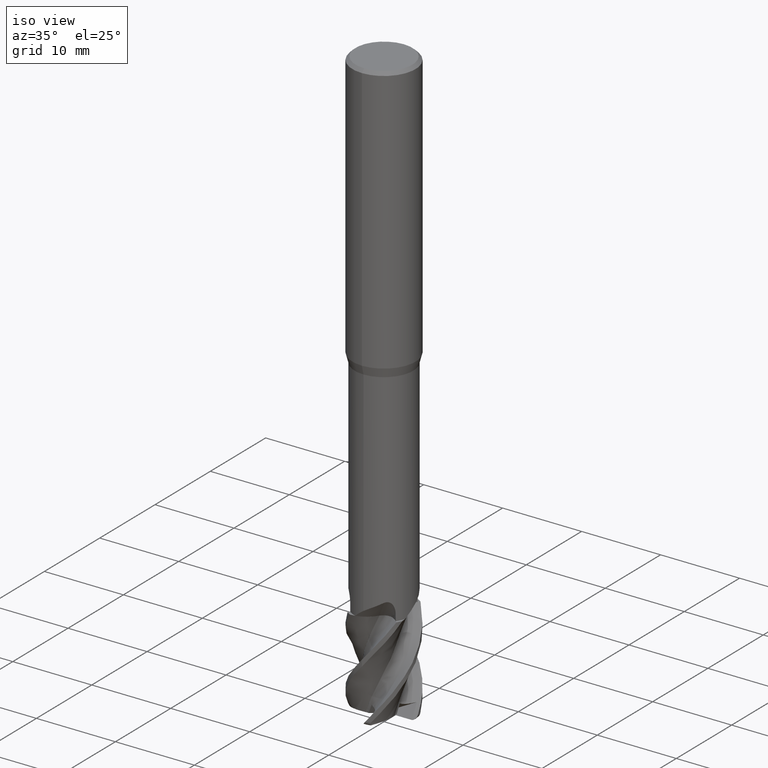
[diagram: clean part render]
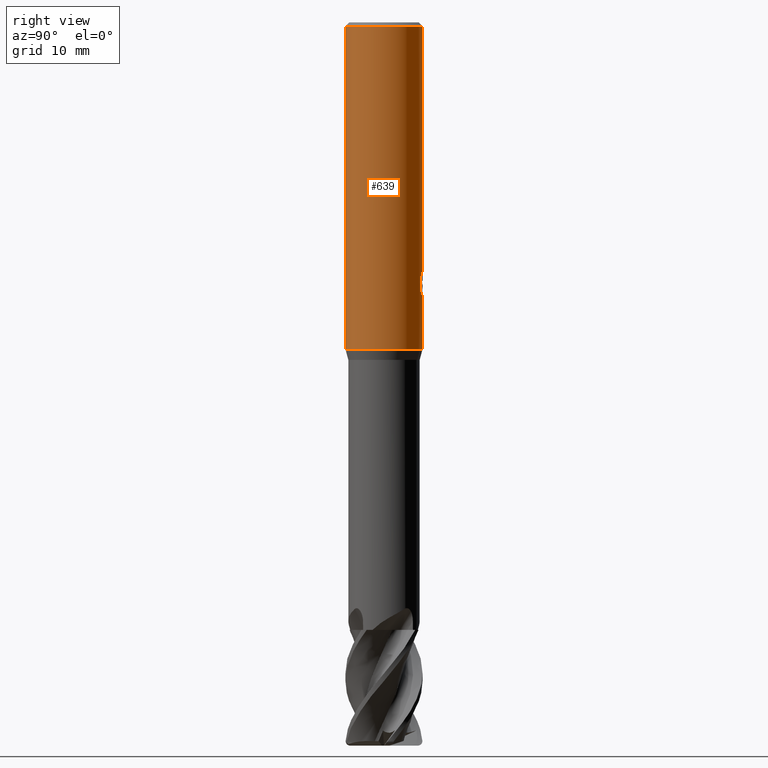
[diagram: tour spotlight — one face highlighted and labeled with its STEP entity id]
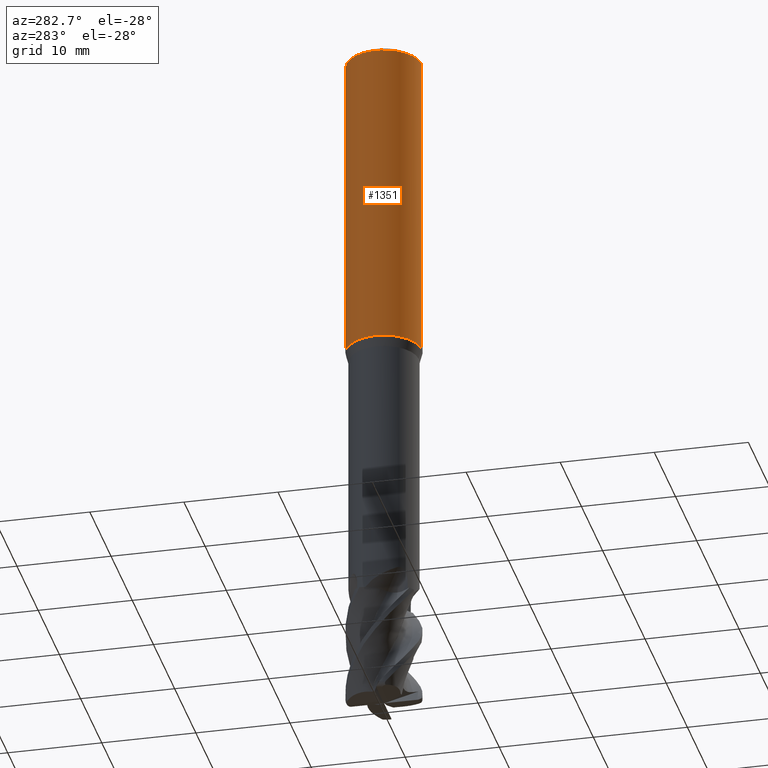
[diagram: tour spotlight — one face highlighted and labeled with its STEP entity id]
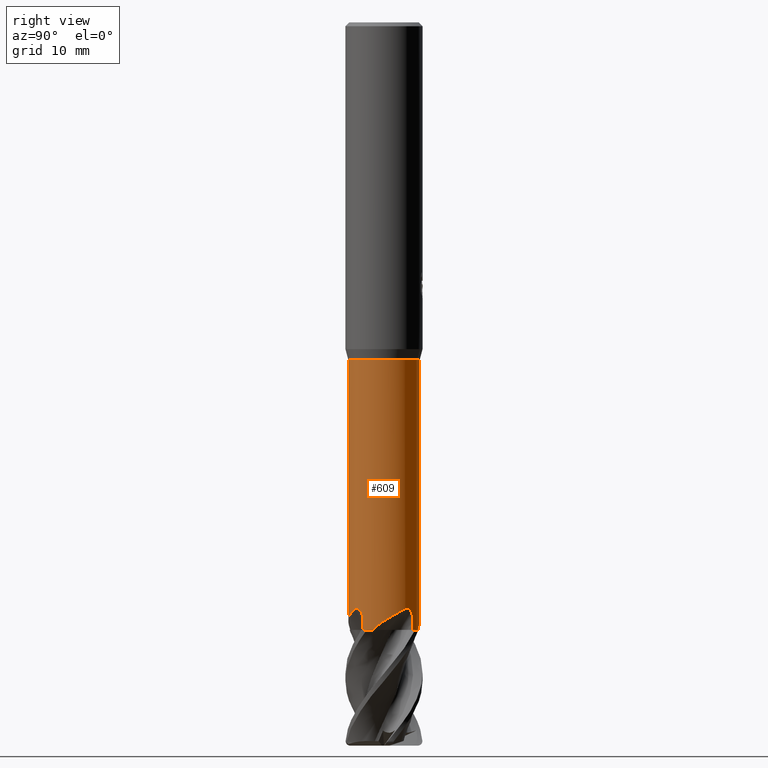
[diagram: tour spotlight — one face highlighted and labeled with its STEP entity id]
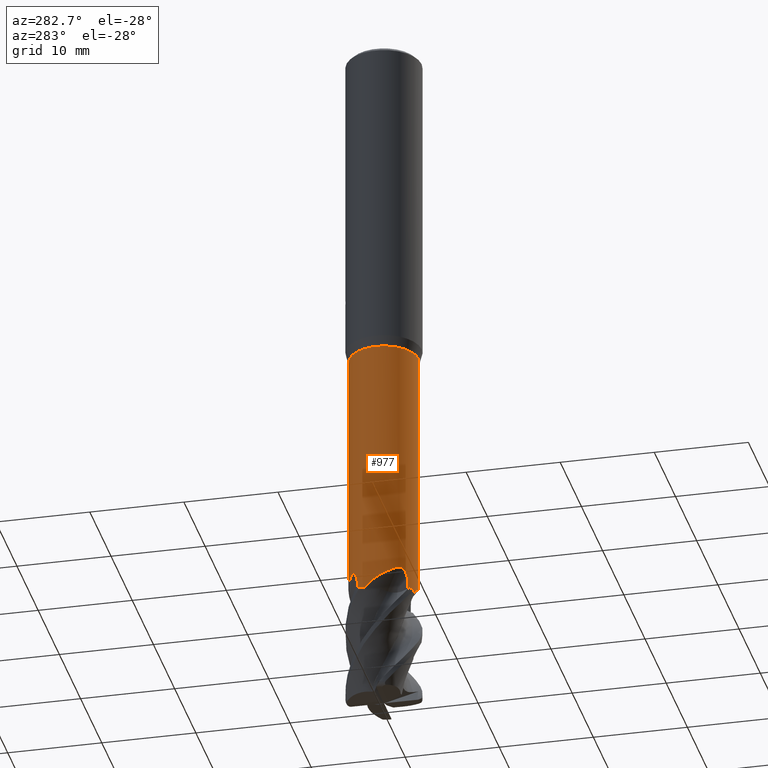
[diagram: tour spotlight — one face highlighted and labeled with its STEP entity id]
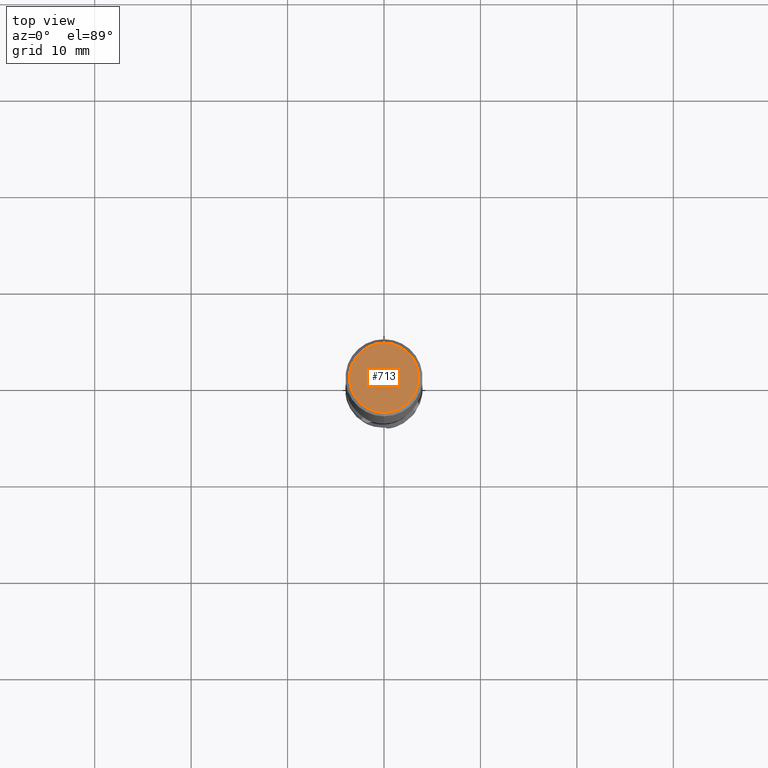
[diagram: tour spotlight — one face highlighted and labeled with its STEP entity id]
A machine part: a face-by-face anatomy tour. The part has 88 B-rep faces; the first image is the clean iso view, then the 5 largest visible faces are spotlighted one at a time (largest first), each with its STEP entity span.

Face 1 — right view, entity #639. In plain terms, the highlighted cylindrical surface (partial cylindrical patch) has radius 4 mm, axis along (-0, -0, 1).
Definition (entity closure, byte-faithful):
#521=VERTEX_POINT('',#1509);
#531=VERTEX_POINT('',#1521);
#577=EDGE_CURVE('',#531,#629,#1567,.T.);
#629=VERTEX_POINT('',#1624);
#639=ADVANCED_FACE('',(#1635,#1636),#1637,.T.);
#649=VERTEX_POINT('',#1647);
#655=EDGE_CURVE('',#521,#945,#1653,.T.);
#707=EDGE_CURVE('',#779,#531,#1713,.T.);
#723=EDGE_CURVE('',#649,#1391,#1730,.T.);
#755=VERTEX_POINT('',#1764);
#779=VERTEX_POINT('',#1789);
#789=EDGE_CURVE('',#811,#905,#1799,.T.);
#799=EDGE_CURVE('',#1433,#1369,#1809,.T.);
#801=EDGE_CURVE('',#1391,#811,#1811,.T.);
#811=VERTEX_POINT('',#1821);
#817=EDGE_CURVE('',#1369,#779,#1827,.T.);
#895=EDGE_CURVE('',#969,#1045,#1913,.T.);
#905=VERTEX_POINT('',#1923);
#911=VERTEX_POINT('',#1931);
#945=VERTEX_POINT('',#1968);
#969=VERTEX_POINT('',#1994);
#1045=VERTEX_POINT('',#2078);
#1171=EDGE_CURVE('',#969,#521,#2213,.T.);
#1277=EDGE_CURVE('',#911,#649,#2329,.T.);
#1355=EDGE_CURVE('',#755,#911,#2422,.T.);
#1369=VERTEX_POINT('',#2436);
#1391=VERTEX_POINT('',#2461);
#1403=EDGE_CURVE('',#945,#1045,#2473,.T.);
#1433=VERTEX_POINT('',#2505);
#1463=EDGE_CURVE('',#905,#1433,#2538,.T.);
#1483=EDGE_CURVE('',#629,#755,#2562,.T.);
#1509=CARTESIAN_POINT('',(0.0,4.0,-33.88));
#1521=CARTESIAN_POINT('',(0.019999937499785,3.99995,-27.3927905605459));
#1567=LINE('',#2985,#2986);
#1624=CARTESIAN_POINT('',(0.0199999374997759,3.99995,-28.5738244903379));
#1635=FACE_OUTER_BOUND('',#3640,.T.);
#1636=FACE_BOUND('',#3641,.T.);
#1637=CYLINDRICAL_SURFACE('',#3642,4.0);
#1647=CARTESIAN_POINT('',(0.776488765473096,3.92390942773837,-28.3322783924577));
#1653=CIRCLE('',#3733,4.0);
#1713=ELLIPSE('',#4524,4.45971372817144,4.0);
#1730=B_SPLINE_CURVE_WITH_KNOTS('',3,(#4646,#4647,#4648,#4649,#4650,#4651),.UNSPECIFIED.,.F.,.F.,(4,2,4),(7.16072728266531,7.71082854825732,8.26170500393967),.UNSPECIFIED.);
#1764=CARTESIAN_POINT('',(0.257866222563656,3.99167947251038,-28.5465847976549));
#1789=CARTESIAN_POINT('',(0.509439885356677,3.96742624420515,-27.151488521346));
#1799=B_SPLINE_CURVE_WITH_KNOTS('',3,(#4846,#4847,#4848,#4849,#4850,#4851),.UNSPECIFIED.,.F.,.F.,(4,2,4),(0.550876474883806,1.10175294976761,1.65185423385294),.UNSPECIFIED.);
#1809=LINE('',#4865,#4866);
#1811=LINE('',#4869,#4870);
#1821=CARTESIAN_POINT('',(1.18861630964378,3.81931816800444,-26.3379151090958));
#1827=B_SPLINE_CURVE_WITH_KNOTS('',3,(#4950,#4951,#4952,#4953,#4954,#4955,#4956,#4957,#4958,#4959,#4960,#4961,#4962,#4963),.UNSPECIFIED.,.F.,.F.,(4,2,2,2,2,2,4),(2.78814193532245,3.186140861262,3.58413978720155,3.9821387131411,4.37912318714916,4.77610766115722,5.1758320595667),.UNSPECIFIED.);
#1913=CIRCLE('',#5611,4.0);
#1923=CARTESIAN_POINT('',(0.710597095545329,3.93637546072558,-25.8801002461062));
#1931=CARTESIAN_POINT('',(0.776488765473097,3.92390942773837,-27.0533236971509));
#1968=CARTESIAN_POINT('',(4.89842541528951E-016,-4.0,-33.88));
#1994=CARTESIAN_POINT('',(0.0,4.0,-0.399999999999999));
#2078=CARTESIAN_POINT('',(4.89842541528951E-016,-4.0,-0.399999999999999));
#2213=LINE('',#6884,#6885);
#2329=LINE('',#7748,#7749);
#2422=ELLIPSE('',#8414,12.1919782934791,4.0);
#2436=CARTESIAN_POINT('',(0.0199999374997714,3.99995,-27.2158146720462));
#2461=CARTESIAN_POINT('',(1.18861630964378,3.81931816800444,-27.9157773959038));
#2473=LINE('',#9035,#9036);
#2505=CARTESIAN_POINT('',(0.0199999374997688,3.99995,-26.7937883624539));
#2538=B_SPLINE_CURVE_WITH_KNOTS('',3,(#9705,#9706,#9707,#9708,#9709,#9710,#9711,#9712,#9713,#9714,#9715,#9716,#9717,#9718,#9719,#9720,#9721,#9722,#9723,#9724,#9725,#9726,#9727,#9728,#9729,#9730,#9731),.UNSPECIFIED.,.F.,.F.,(4,2,3,2,2,2,2,2,2,2,2,2,4),(-0.482399188008131,-0.241199594004066,0.0,0.241199594004064,0.482399188008128,0.724223029271464,0.9660468705348,1.20681941744947,1.44759196436414,1.68867461116738,1.92975725797061,2.17083990477384,2.41192255157708),.UNSPECIFIED.);
#2562=B_SPLINE_CURVE_WITH_KNOTS('',3,(#10255,#10256,#10257,#10258,#10259,#10260,#10261,#10262,#10263,#10264,#10265,#10266,#10267,#10268),.UNSPECIFIED.,.F.,.F.,(4,2,2,2,2,2,4),(4.95733749207013,5.50838380122003,6.05950526412701,6.33506599558049,6.61062672703398,6.88567738507847,7.16072804312297),.UNSPECIFIED.);
#2985=CARTESIAN_POINT('',(0.019999937499785,3.99995,-27.2273154291933));
#2986=VECTOR('',#10307,1.0);
#3640=EDGE_LOOP('',(#10394,#10395,#10396,#10397));
#3641=EDGE_LOOP('',(#10398,#10399,#10400,#10401,#10402,#10403,#10404,#10405,#10406,#10407,#10408));
#3642=AXIS2_PLACEMENT_3D('',#10409,#10410,#10411);
#3733=AXIS2_PLACEMENT_3D('',#10413,#10414,#10415);
#4524=AXIS2_PLACEMENT_3D('',#10490,#10491,#10492);
#4646=CARTESIAN_POINT('',(0.530824908337292,3.96462166122932,-28.4634887547648));
#4647=CARTESIAN_POINT('',(0.708916603241935,3.94077688717912,-28.3894036008586));
#4648=CARTESIAN_POINT('',(0.870638009471879,3.90632168476773,-28.278274098436));
#4649=CARTESIAN_POINT('',(1.12599239369796,3.84051425435027,-28.0230348582084));
#4650=CARTESIAN_POINT('',(1.23716094021759,3.80468013710735,-27.8613001630698));
#4651=CARTESIAN_POINT('',(1.31129922066112,3.77895413492855,-27.6831999275423));
#4846=CARTESIAN_POINT('',(1.31129922774667,3.77895413246985,-26.5704925897826));
#4847=CARTESIAN_POINT('',(1.23716094470124,3.80468013570727,-26.3923923480887));
#4848=CARTESIAN_POINT('',(1.12599239428804,3.84051425433622,-26.2306576473589));
#4849=CARTESIAN_POINT('',(0.870638001198906,3.90632168676194,-25.9754183984497));
#4850=CARTESIAN_POINT('',(0.708916589443108,3.94077688993501,-25.864288892285));
#4851=CARTESIAN_POINT('',(0.530824888471886,3.9646216638891,-25.7902037358949));
#4865=CARTESIAN_POINT('',(0.019999937499785,3.99995,-27.2273154291933));
#4866=VECTOR('',#10548,1.0);
#4869=CARTESIAN_POINT('',(1.18861630964378,3.81931816800444,-27.1268462524998));
#4870=VECTOR('',#10549,1.0);
#4950=CARTESIAN_POINT('',(-0.839639930120254,3.91088286551102,-25.7667546609877));
#4951=CARTESIAN_POINT('',(-0.893456726120442,3.89932877080168,-25.8963186730283));
#4952=CARTESIAN_POINT('',(-0.920085402440226,3.89274233057062,-26.0374761638438));
#4953=CARTESIAN_POINT('',(-0.920085402440226,3.89274233057062,-26.3028087811369));
#4954=CARTESIAN_POINT('',(-0.893456726120443,3.89932877080168,-26.4439662719524));
#4955=CARTESIAN_POINT('',(-0.785823134120092,3.92243696022038,-26.7030942960337));
#4956=CARTESIAN_POINT('',(-0.704842888749748,3.9385421061724,-26.8211120576966));
#4957=CARTESIAN_POINT('',(-0.518436722554853,3.96737890598685,-27.0072390238667));
#4958=CARTESIAN_POINT('',(-0.400501666076801,3.9820125668256,-27.0879920847227));
#4959=CARTESIAN_POINT('',(-0.14167055177908,3.99959436951154,-27.1952571060256));
#4960=CARTESIAN_POINT('',(-0.000740255857727135,4.00218817566361,-27.2217442320818));
#4961=CARTESIAN_POINT('',(0.264685784501636,3.99345648827941,-27.2217442320818));
#4962=CARTESIAN_POINT('',(0.406040230589981,3.98148410418381,-27.1949287653295));
#4963=CARTESIAN_POINT('',(0.535570405748399,3.96398339306391,-27.1410217577715));
#5611=AXIS2_PLACEMENT_3D('',#10624,#10625,#10626);
#6884=CARTESIAN_POINT('',(-4.89842541528951E-016,4.0,-17.14));
#6885=VECTOR('',#10957,1.0);
#7748=CARTESIAN_POINT('',(0.776488765473097,3.92390942773837,-27.6928010448043));
#7749=VECTOR('',#11061,1.0);
#8414=AXIS2_PLACEMENT_3D('',#11217,#11218,#11219);
#9035=CARTESIAN_POINT('',(4.89842541528951E-016,-4.0,-17.14));
#9036=VECTOR('',#11246,1.0);
#9705=CARTESIAN_POINT('',(0.591270698674172,3.95605851332982,-25.7144678539585));
#9706=CARTESIAN_POINT('',(0.647769671790733,3.94761420261085,-25.7710425646682));
#9707=CARTESIAN_POINT('',(0.696841080653836,3.93897337331235,-25.8427086408797));
#9708=CARTESIAN_POINT('',(0.762023811115679,3.92688406421869,-25.9999796971962));
#9709=CARTESIAN_POINT('',(0.778124477850712,3.92358538800541,-26.0856005723627));
#9710=CARTESIAN_POINT('',(0.778124477850712,3.92358538800541,-26.1660004370307));
#9711=CARTESIAN_POINT('',(0.778124477850712,3.92358538800541,-26.2464003016988));
#9712=CARTESIAN_POINT('',(0.762023811115681,3.92688406421869,-26.3320211768652));
#9713=CARTESIAN_POINT('',(0.696841080653838,3.93897337331235,-26.4892922331818));
#9714=CARTESIAN_POINT('',(0.647769671790732,3.94761420261085,-26.5609583093933));
#9715=CARTESIAN_POINT('',(0.534625500895564,3.96452467872,-26.6742541514908));
#9716=CARTESIAN_POINT('',(0.462882720090971,3.9739143868376,-26.7234616883065));
#9717=CARTESIAN_POINT('',(0.305424596762447,3.98910663956121,-26.7888359608539));
#9718=CARTESIAN_POINT('',(0.219692000121854,3.99477572164147,-26.8049920844591));
#9719=CARTESIAN_POINT('',(0.0589238801196738,4.00037113842804,-26.8049920844591));
#9720=CARTESIAN_POINT('',(-0.0266466636037332,4.00068563850923,-26.7889614258835));
#9721=CARTESIAN_POINT('',(-0.184016632015548,3.99654019148199,-26.7237975849122));
#9722=CARTESIAN_POINT('',(-0.255821268258577,3.99221601723601,-26.6746684219598));
#9723=CARTESIAN_POINT('',(-0.369270011978719,3.98332539991772,-26.5613167161151));
#9724=CARTESIAN_POINT('',(-0.418478431506147,3.97818494377544,-26.4894898415134));
#9725=CARTESIAN_POINT('',(-0.483775177561257,3.97077337948459,-26.3320164516185));
#9726=CARTESIAN_POINT('',(-0.499858817006064,3.96864475143106,-26.2463613192985));
#9727=CARTESIAN_POINT('',(-0.499858817006064,3.96864475143106,-26.085639554763));
#9728=CARTESIAN_POINT('',(-0.483775177561257,3.97077337948459,-25.999984422443));
#9729=CARTESIAN_POINT('',(-0.418478431506147,3.97818494377544,-25.8425110325481));
#9730=CARTESIAN_POINT('',(-0.36927001197872,3.98332539991772,-25.7706841579463));
#9731=CARTESIAN_POINT('',(-0.312509134916211,3.98777356937351,-25.7139718310461));
#10255=CARTESIAN_POINT('',(-1.36175335856805,3.76106737382204,-27.68312138195));
#10256=CARTESIAN_POINT('',(-1.28766978639953,3.78789046737408,-27.8611198068732));
#10257=CARTESIAN_POINT('',(-1.17663690404377,3.82530889808831,-28.0226946628473));
#10258=CARTESIAN_POINT('',(-0.921579810523459,3.89463194488682,-28.2778711912456));
#10259=CARTESIAN_POINT('',(-0.759922009067669,3.93127665729478,-28.389076166199));
#10260=CARTESIAN_POINT('',(-0.492720561797991,3.97055800265641,-28.5003575090144));
#10261=CARTESIAN_POINT('',(-0.399594556265919,3.98110484898349,-28.5285560284185));
#10262=CARTESIAN_POINT('',(-0.211766791343593,3.99550077638431,-28.5656480164513));
#10263=CARTESIAN_POINT('',(-0.117062254808857,3.99934163433615,-28.5745306122803));
#10264=CARTESIAN_POINT('',(0.0664712296567955,4.00049840013219,-28.5745306122803));
#10265=CARTESIAN_POINT('',(0.161048385078536,3.99786226561239,-28.5656802751831));
#10266=CARTESIAN_POINT('',(0.348701139326367,3.98588093055625,-28.5286756834131));
#10267=CARTESIAN_POINT('',(0.441779296933124,3.97654402221767,-28.5005317208671));
#10268=CARTESIAN_POINT('',(0.530825151871004,3.96462162862247,-28.4634891406098));
#10307=DIRECTION('',(0.0,0.0,-1.0));
#10394=ORIENTED_EDGE('',*,*,#1171,.F.);
#10395=ORIENTED_EDGE('',*,*,#895,.T.);
#10396=ORIENTED_EDGE('',*,*,#1403,.F.);
#10397=ORIENTED_EDGE('',*,*,#655,.F.);
#10398=ORIENTED_EDGE('',*,*,#707,.T.);
#10399=ORIENTED_EDGE('',*,*,#577,.T.);
#10400=ORIENTED_EDGE('',*,*,#1483,.T.);
#10401=ORIENTED_EDGE('',*,*,#1355,.T.);
#10402=ORIENTED_EDGE('',*,*,#1277,.T.);
#10403=ORIENTED_EDGE('',*,*,#723,.T.);
#10404=ORIENTED_EDGE('',*,*,#801,.T.);
#10405=ORIENTED_EDGE('',*,*,#789,.T.);
#10406=ORIENTED_EDGE('',*,*,#1463,.T.);
#10407=ORIENTED_EDGE('',*,*,#799,.T.);
#10408=ORIENTED_EDGE('',*,*,#817,.T.);
#10409=CARTESIAN_POINT('',(0.0,0.0,-17.14));
#10410=DIRECTION('',(-0.0,-0.0,1.0));
#10411=DIRECTION('',(0.0,1.0,0.0));
#10413=CARTESIAN_POINT('',(0.0,0.0,-33.88));
#10414=DIRECTION('',(0.0,0.0,-1.0));
#10415=DIRECTION('',(0.0,1.0,0.0));
#10490=CARTESIAN_POINT('',(0.0,0.0,-27.4026508625578));
#10491=DIRECTION('',(-0.442195774284071,0.0,0.896918556617774));
#10492=DIRECTION('',(0.896918556617774,-0.0,0.442195774284071));
#10548=DIRECTION('',(0.0,0.0,-1.0));
#10549=DIRECTION('',(-0.0,-0.0,1.0));
#10624=CARTESIAN_POINT('',(0.0,0.0,-0.399999999999999));
#10625=DIRECTION('',(0.0,0.0,-1.0));
#10626=DIRECTION('',(0.0,1.0,0.0));
#10957=DIRECTION('',(0.0,0.0,-1.0));
#11061=DIRECTION('',(0.0,0.0,-1.0));
#11217=CARTESIAN_POINT('',(0.0,0.0,-29.2890546431191));
#11218=DIRECTION('',(0.944648353914092,0.0,-0.328084573619969));
#11219=DIRECTION('',(0.328084573619968,-0.0,0.944648353914092));
#11246=DIRECTION('',(-0.0,-0.0,1.0));

Face 2 — auxiliary view, entity #1351. In plain terms, the highlighted cylindrical surface (partial cylindrical patch) has radius 4 mm, axis along (-0, -0, 1).
Definition (entity closure, byte-faithful):
#521=VERTEX_POINT('',#1509);
#537=VERTEX_POINT('',#1527);
#611=EDGE_CURVE('',#1145,#735,#1605,.T.);
#665=EDGE_CURVE('',#735,#1137,#1663,.T.);
#735=VERTEX_POINT('',#1744);
#743=VERTEX_POINT('',#1752);
#827=EDGE_CURVE('',#1001,#1427,#1837,.T.);
#841=EDGE_CURVE('',#1137,#1145,#1853,.T.);
#921=VERTEX_POINT('',#1941);
#945=VERTEX_POINT('',#1968);
#957=EDGE_CURVE('',#743,#921,#1981,.T.);
#969=VERTEX_POINT('',#1994);
#1001=VERTEX_POINT('',#2032);
#1045=VERTEX_POINT('',#2078);
#1117=EDGE_CURVE('',#1045,#969,#2157,.T.);
#1119=EDGE_CURVE('',#945,#521,#2159,.T.);
#1137=VERTEX_POINT('',#2179);
#1145=VERTEX_POINT('',#2187);
#1171=EDGE_CURVE('',#969,#521,#2213,.T.);
#1351=ADVANCED_FACE('',(#2414,#2415,#2416),#2417,.T.);
#1403=EDGE_CURVE('',#945,#1045,#2473,.T.);
#1417=EDGE_CURVE('',#537,#743,#2488,.T.);
#1427=VERTEX_POINT('',#2499);
#1451=EDGE_CURVE('',#1427,#537,#2525,.T.);
#1459=EDGE_CURVE('',#921,#1001,#2533,.T.);
#1509=CARTESIAN_POINT('',(0.0,4.0,-33.88));
#1527=CARTESIAN_POINT('',(-0.0199999374997696,3.99995,-27.2107716443047));
#1605=LINE('',#3383,#3384);
#1663=ELLIPSE('',#3780,4.45971372817144,4.0);
#1744=CARTESIAN_POINT('',(-0.019999937499785,3.99995,-27.4125111645698));
#1752=CARTESIAN_POINT('',(-0.0199999374997659,3.99995,-26.7848599426188));
#1837=CIRCLE('',#5036,4.0);
#1853=B_SPLINE_CURVE_WITH_KNOTS('',3,(#5105,#5106,#5107,#5108,#5109,#5110,#5111,#5112,#5113,#5114,#5115,#5116,#5117,#5118),.UNSPECIFIED.,.F.,.F.,(4,2,2,2,2,2,4),(4.95733749207013,5.50838380122003,6.05950526412701,6.33506599558049,6.61062672703398,6.88567738507847,7.16072804312297),.UNSPECIFIED.);
#1941=CARTESIAN_POINT('',(-0.432331434700681,3.97656755639454,-26.4519006279552));
#1968=CARTESIAN_POINT('',(4.89842541528951E-016,-4.0,-33.88));
#1981=B_SPLINE_CURVE_WITH_KNOTS('',3,(#5791,#5792,#5793,#5794,#5795,#5796,#5797,#5798,#5799,#5800,#5801,#5802,#5803,#5804,#5805,#5806,#5807,#5808,#5809,#5810,#5811,#5812,#5813,#5814,#5815,#5816,#5817),.UNSPECIFIED.,.F.,.F.,(4,2,3,2,2,2,2,2,2,2,2,2,4),(-0.482399188008131,-0.241199594004066,0.0,0.241199594004064,0.482399188008128,0.724223029271464,0.9660468705348,1.20681941744947,1.44759196436414,1.68867461116738,1.92975725797061,2.17083990477384,2.41192255157708),.UNSPECIFIED.);
#1994=CARTESIAN_POINT('',(0.0,4.0,-0.399999999999999));
#2032=CARTESIAN_POINT('',(-0.499846186977971,3.96864634218818,-26.1619828749095));
#2078=CARTESIAN_POINT('',(4.89842541528951E-016,-4.0,-0.399999999999999));
#2157=CIRCLE('',#6739,4.0);
#2159=CIRCLE('',#6742,4.0);
#2179=CARTESIAN_POINT('',(-1.18847647787758,3.81936168247152,-27.9885895439196));
#2187=CARTESIAN_POINT('',(-0.0199999374997854,3.99995,-28.5745212352076));
#2213=LINE('',#6884,#6885);
#2414=FACE_OUTER_BOUND('',#8405,.T.);
#2415=FACE_BOUND('',#8406,.T.);
#2416=FACE_BOUND('',#8407,.T.);
#2417=CYLINDRICAL_SURFACE('',#8408,4.0);
#2473=LINE('',#9035,#9036);
#2488=LINE('',#9081,#9082);
#2499=CARTESIAN_POINT('',(-0.920053745953249,3.89274981273616,-26.1619828749095));
#2525=B_SPLINE_CURVE_WITH_KNOTS('',3,(#9642,#9643,#9644,#9645,#9646,#9647,#9648,#9649,#9650,#9651,#9652,#9653,#9654,#9655),.UNSPECIFIED.,.F.,.F.,(4,2,2,2,2,2,4),(2.78814193532245,3.186140861262,3.58413978720155,3.9821387131411,4.37912318714916,4.77610766115722,5.1758320595667),.UNSPECIFIED.);
#2533=B_SPLINE_CURVE_WITH_KNOTS('',3,(#9673,#9674,#9675,#9676,#9677,#9678,#9679,#9680,#9681,#9682,#9683,#9684,#9685,#9686,#9687,#9688,#9689,#9690,#9691,#9692,#9693,#9694,#9695,#9696,#9697,#9698,#9699),.UNSPECIFIED.,.F.,.F.,(4,2,3,2,2,2,2,2,2,2,2,2,4),(-0.482399188008131,-0.241199594004066,0.0,0.241199594004064,0.482399188008128,0.724223029271464,0.9660468705348,1.20681941744947,1.44759196436414,1.68867461116738,1.92975725797061,2.17083990477384,2.41192255157708),.UNSPECIFIED.);
#3383=CARTESIAN_POINT('',(-0.019999937499785,3.99995,-27.2273154291933));
#3384=VECTOR('',#10362,1.0);
#3780=AXIS2_PLACEMENT_3D('',#10416,#10417,#10418);
#5036=AXIS2_PLACEMENT_3D('',#10560,#10561,#10562);
#5105=CARTESIAN_POINT('',(-1.36175335856805,3.76106737382204,-27.68312138195));
#5106=CARTESIAN_POINT('',(-1.28766978639953,3.78789046737408,-27.8611198068732));
#5107=CARTESIAN_POINT('',(-1.17663690404377,3.82530889808831,-28.0226946628473));
#5108=CARTESIAN_POINT('',(-0.921579810523459,3.89463194488682,-28.2778711912456));
#5109=CARTESIAN_POINT('',(-0.759922009067669,3.93127665729478,-28.389076166199));
#5110=CARTESIAN_POINT('',(-0.492720561797991,3.97055800265641,-28.5003575090144));
#5111=CARTESIAN_POINT('',(-0.399594556265919,3.98110484898349,-28.5285560284185));
#5112=CARTESIAN_POINT('',(-0.211766791343593,3.99550077638431,-28.5656480164513));
#5113=CARTESIAN_POINT('',(-0.117062254808857,3.99934163433615,-28.5745306122803));
#5114=CARTESIAN_POINT('',(0.0664712296567955,4.00049840013219,-28.5745306122803));
#5115=CARTESIAN_POINT('',(0.161048385078536,3.99786226561239,-28.5656802751831));
#5116=CARTESIAN_POINT('',(0.348701139326367,3.98588093055625,-28.5286756834131));
#5117=CARTESIAN_POINT('',(0.441779296933124,3.97654402221767,-28.5005317208671));
#5118=CARTESIAN_POINT('',(0.530825151871004,3.96462162862247,-28.4634891406098));
#5791=CARTESIAN_POINT('',(0.591270698674172,3.95605851332982,-25.7144678539585));
#5792=CARTESIAN_POINT('',(0.647769671790733,3.94761420261085,-25.7710425646682));
#5793=CARTESIAN_POINT('',(0.696841080653836,3.93897337331235,-25.8427086408797));
#5794=CARTESIAN_POINT('',(0.762023811115679,3.92688406421869,-25.9999796971962));
#5795=CARTESIAN_POINT('',(0.778124477850712,3.92358538800541,-26.0856005723627));
#5796=CARTESIAN_POINT('',(0.778124477850712,3.92358538800541,-26.1660004370307));
#5797=CARTESIAN_POINT('',(0.778124477850712,3.92358538800541,-26.2464003016988));
#5798=CARTESIAN_POINT('',(0.762023811115681,3.92688406421869,-26.3320211768652));
#5799=CARTESIAN_POINT('',(0.696841080653838,3.93897337331235,-26.4892922331818));
#5800=CARTESIAN_POINT('',(0.647769671790732,3.94761420261085,-26.5609583093933));
#5801=CARTESIAN_POINT('',(0.534625500895564,3.96452467872,-26.6742541514908));
#5802=CARTESIAN_POINT('',(0.462882720090971,3.9739143868376,-26.7234616883065));
#5803=CARTESIAN_POINT('',(0.305424596762447,3.98910663956121,-26.7888359608539));
#5804=CARTESIAN_POINT('',(0.219692000121854,3.99477572164147,-26.8049920844591));
#5805=CARTESIAN_POINT('',(0.0589238801196738,4.00037113842804,-26.8049920844591));
#5806=CARTESIAN_POINT('',(-0.0266466636037332,4.00068563850923,-26.7889614258835));
#5807=CARTESIAN_POINT('',(-0.184016632015548,3.99654019148199,-26.7237975849122));
#5808=CARTESIAN_POINT('',(-0.255821268258577,3.99221601723601,-26.6746684219598));
#5809=CARTESIAN_POINT('',(-0.369270011978719,3.98332539991772,-26.5613167161151));
#5810=CARTESIAN_POINT('',(-0.418478431506147,3.97818494377544,-26.4894898415134));
#5811=CARTESIAN_POINT('',(-0.483775177561257,3.97077337948459,-26.3320164516185));
#5812=CARTESIAN_POINT('',(-0.499858817006064,3.96864475143106,-26.2463613192985));
#5813=CARTESIAN_POINT('',(-0.499858817006064,3.96864475143106,-26.085639554763));
#5814=CARTESIAN_POINT('',(-0.483775177561257,3.97077337948459,-25.999984422443));
#5815=CARTESIAN_POINT('',(-0.418478431506147,3.97818494377544,-25.8425110325481));
#5816=CARTESIAN_POINT('',(-0.36927001197872,3.98332539991772,-25.7706841579463));
#5817=CARTESIAN_POINT('',(-0.312509134916211,3.98777356937351,-25.7139718310461));
#6739=AXIS2_PLACEMENT_3D('',#10921,#10922,#10923);
#6742=AXIS2_PLACEMENT_3D('',#10924,#10925,#10926);
#6884=CARTESIAN_POINT('',(-4.89842541528951E-016,4.0,-17.14));
#6885=VECTOR('',#10957,1.0);
#8405=EDGE_LOOP('',(#11192,#11193,#11194,#11195));
#8406=EDGE_LOOP('',(#11196,#11197,#11198));
#8407=EDGE_LOOP('',(#11199,#11200,#11201,#11202,#11203));
#8408=AXIS2_PLACEMENT_3D('',#11204,#11205,#11206);
#9035=CARTESIAN_POINT('',(4.89842541528951E-016,-4.0,-17.14));
#9036=VECTOR('',#11246,1.0);
#9081=CARTESIAN_POINT('',(-0.019999937499785,3.99995,-27.2273154291933));
#9082=VECTOR('',#11256,1.0);
#9642=CARTESIAN_POINT('',(-0.839639930120254,3.91088286551102,-25.7667546609877));
#9643=CARTESIAN_POINT('',(-0.893456726120442,3.89932877080168,-25.8963186730283));
#9644=CARTESIAN_POINT('',(-0.920085402440226,3.89274233057062,-26.0374761638438));
#9645=CARTESIAN_POINT('',(-0.920085402440226,3.89274233057062,-26.3028087811369));
#9646=CARTESIAN_POINT('',(-0.893456726120443,3.89932877080168,-26.4439662719524));
#9647=CARTESIAN_POINT('',(-0.785823134120092,3.92243696022038,-26.7030942960337));
#9648=CARTESIAN_POINT('',(-0.704842888749748,3.9385421061724,-26.8211120576966));
#9649=CARTESIAN_POINT('',(-0.518436722554853,3.96737890598685,-27.0072390238667));
#9650=CARTESIAN_POINT('',(-0.400501666076801,3.9820125668256,-27.0879920847227));
#9651=CARTESIAN_POINT('',(-0.14167055177908,3.99959436951154,-27.1952571060256));
#9652=CARTESIAN_POINT('',(-0.000740255857727135,4.00218817566361,-27.2217442320818));
#9653=CARTESIAN_POINT('',(0.264685784501636,3.99345648827941,-27.2217442320818));
#9654=CARTESIAN_POINT('',(0.406040230589981,3.98148410418381,-27.1949287653295));
#9655=CARTESIAN_POINT('',(0.535570405748399,3.96398339306391,-27.1410217577715));
#9673=CARTESIAN_POINT('',(0.591270698674172,3.95605851332982,-25.7144678539585));
#9674=CARTESIAN_POINT('',(0.647769671790733,3.94761420261085,-25.7710425646682));
#9675=CARTESIAN_POINT('',(0.696841080653836,3.93897337331235,-25.8427086408797));
#9676=CARTESIAN_POINT('',(0.762023811115679,3.92688406421869,-25.9999796971962));
#9677=CARTESIAN_POINT('',(0.778124477850712,3.92358538800541,-26.0856005723627));
#9678=CARTESIAN_POINT('',(0.778124477850712,3.92358538800541,-26.1660004370307));
#9679=CARTESIAN_POINT('',(0.778124477850712,3.92358538800541,-26.2464003016988));
#9680=CARTESIAN_POINT('',(0.762023811115681,3.92688406421869,-26.3320211768652));
#9681=CARTESIAN_POINT('',(0.696841080653838,3.93897337331235,-26.4892922331818));
#9682=CARTESIAN_POINT('',(0.647769671790732,3.94761420261085,-26.5609583093933));
#9683=CARTESIAN_POINT('',(0.534625500895564,3.96452467872,-26.6742541514908));
#9684=CARTESIAN_POINT('',(0.462882720090971,3.9739143868376,-26.7234616883065));
#9685=CARTESIAN_POINT('',(0.305424596762447,3.98910663956121,-26.7888359608539));
#9686=CARTESIAN_POINT('',(0.219692000121854,3.99477572164147,-26.8049920844591));
#9687=CARTESIAN_POINT('',(0.0589238801196738,4.00037113842804,-26.8049920844591));
#9688=CARTESIAN_POINT('',(-0.0266466636037332,4.00068563850923,-26.7889614258835));
#9689=CARTESIAN_POINT('',(-0.184016632015548,3.99654019148199,-26.7237975849122));
#9690=CARTESIAN_POINT('',(-0.255821268258577,3.99221601723601,-26.6746684219598));
#9691=CARTESIAN_POINT('',(-0.369270011978719,3.98332539991772,-26.5613167161151));
#9692=CARTESIAN_POINT('',(-0.418478431506147,3.97818494377544,-26.4894898415134));
#9693=CARTESIAN_POINT('',(-0.483775177561257,3.97077337948459,-26.3320164516185));
#9694=CARTESIAN_POINT('',(-0.499858817006064,3.96864475143106,-26.2463613192985));
#9695=CARTESIAN_POINT('',(-0.499858817006064,3.96864475143106,-26.085639554763));
#9696=CARTESIAN_POINT('',(-0.483775177561257,3.97077337948459,-25.999984422443));
#9697=CARTESIAN_POINT('',(-0.418478431506147,3.97818494377544,-25.8425110325481));
#9698=CARTESIAN_POINT('',(-0.36927001197872,3.98332539991772,-25.7706841579463));
#9699=CARTESIAN_POINT('',(-0.312509134916211,3.98777356937351,-25.7139718310461));
#10362=DIRECTION('',(-0.0,-0.0,1.0));
#10416=CARTESIAN_POINT('',(0.0,0.0,-27.4026508625578));
#10417=DIRECTION('',(-0.442195774284071,0.0,0.896918556617774));
#10418=DIRECTION('',(0.896918556617774,-0.0,0.442195774284071));
#10560=CARTESIAN_POINT('',(0.0,0.0,-26.1619828749095));
#10561=DIRECTION('',(0.0,-0.0,1.0));
#10562=DIRECTION('',(0.0,1.0,0.0));
#10921=CARTESIAN_POINT('',(0.0,0.0,-0.399999999999999));
#10922=DIRECTION('',(0.0,0.0,-1.0));
#10923=DIRECTION('',(0.0,1.0,0.0));
#10924=CARTESIAN_POINT('',(0.0,0.0,-33.88));
#10925=DIRECTION('',(0.0,0.0,-1.0));
#10926=DIRECTION('',(0.0,1.0,0.0));
#10957=DIRECTION('',(0.0,0.0,-1.0));
#11192=ORIENTED_EDGE('',*,*,#1171,.T.);
#11193=ORIENTED_EDGE('',*,*,#1119,.F.);
#11194=ORIENTED_EDGE('',*,*,#1403,.T.);
#11195=ORIENTED_EDGE('',*,*,#1117,.T.);
#11196=ORIENTED_EDGE('',*,*,#841,.T.);
#11197=ORIENTED_EDGE('',*,*,#611,.T.);
#11198=ORIENTED_EDGE('',*,*,#665,.T.);
#11199=ORIENTED_EDGE('',*,*,#957,.T.);
#11200=ORIENTED_EDGE('',*,*,#1459,.T.);
#11201=ORIENTED_EDGE('',*,*,#827,.T.);
#11202=ORIENTED_EDGE('',*,*,#1451,.T.);
#11203=ORIENTED_EDGE('',*,*,#1417,.T.);
#11204=CARTESIAN_POINT('',(0.0,0.0,-17.14));
#11205=DIRECTION('',(-0.0,-0.0,1.0));
#11206=DIRECTION('',(0.0,1.0,0.0));
#11246=DIRECTION('',(-0.0,-0.0,1.0));
#11256=DIRECTION('',(-0.0,-0.0,1.0));

Face 3 — right view, entity #609. In plain terms, the highlighted cylindrical surface (edge-blend (fillet) strip) has radius 3.6999 mm, axis along (-0, -0, 1).
Definition (entity closure, byte-faithful):
#527=VERTEX_POINT('',#1516);
#609=ADVANCED_FACE('',(#1602),#1603,.T.);
#677=EDGE_CURVE('',#1165,#1357,#1676,.T.);
#741=EDGE_CURVE('',#1405,#1357,#1750,.T.);
#773=EDGE_CURVE('',#1359,#1099,#1782,.T.);
#785=EDGE_CURVE('',#1359,#1363,#1795,.T.);
#855=VERTEX_POINT('',#1867);
#857=EDGE_CURVE('',#1133,#1013,#1869,.T.);
#903=EDGE_CURVE('',#527,#1363,#1921,.T.);
#965=VERTEX_POINT('',#1990);
#995=EDGE_CURVE('',#1195,#1013,#2026,.T.);
#1013=VERTEX_POINT('',#2044);
#1025=EDGE_CURVE('',#1195,#965,#2057,.T.);
#1099=VERTEX_POINT('',#2139);
#1125=EDGE_CURVE('',#1405,#1099,#2166,.T.);
#1133=VERTEX_POINT('',#2175);
#1165=VERTEX_POINT('',#2207);
#1195=VERTEX_POINT('',#2239);
#1197=EDGE_CURVE('',#855,#1133,#2241,.T.);
#1223=EDGE_CURVE('',#527,#855,#2269,.T.);
#1357=VERTEX_POINT('',#2424);
#1359=VERTEX_POINT('',#2426);
#1363=VERTEX_POINT('',#2430);
#1381=EDGE_CURVE('',#965,#1165,#2449,.T.);
#1405=VERTEX_POINT('',#2475);
#1516=CARTESIAN_POINT('',(4.57860479864431E-013,-3.69995,-62.0508398322504));
#1602=FACE_OUTER_BOUND('',#3379,.T.);
#1603=CYLINDRICAL_SURFACE('',#3380,3.69995);
#1676=B_SPLINE_CURVE_WITH_KNOTS('',3,(#3798,#3799,#3800,#3801),.UNSPECIFIED.,.F.,.F.,(4,4),(0.0,0.924002132764072),.UNSPECIFIED.);
#1750=CIRCLE('',#4682,3.69995);
#1782=LINE('',#4809,#4810);
#1795=CIRCLE('',#4831,3.69995);
#1867=CARTESIAN_POINT('',(2.14346926647681,-3.01581987296479,-60.8086217323346));
#1869=B_SPLINE_CURVE_WITH_KNOTS('',3,(#5155,#5156,#5157,#5158),.UNSPECIFIED.,.F.,.F.,(4,4),(0.0,0.924002132758938),.UNSPECIFIED.);
#1921=LINE('',#5626,#5627);
#1990=CARTESIAN_POINT('',(3.0158198729648,2.1434692664768,-60.8086217323347));
#2026=CIRCLE('',#6175,3.69995);
#2044=CARTESIAN_POINT('',(3.00205113546992,-2.16271102612526,-63.0));
#2057=B_SPLINE_CURVE_WITH_KNOTS('',3,(#6249,#6250,#6251,#6252,#6253,#6254,#6255,#6256),.UNSPECIFIED.,.F.,.F.,(4,2,2,4),(0.0,1.35689551003428,2.86777081417272,4.20617500465479),.UNSPECIFIED.);
#2139=CARTESIAN_POINT('',(-4.56472701083649E-013,3.69994999999999,-62.0508398322504));
#2166=B_SPLINE_CURVE_WITH_KNOTS('',3,(#6750,#6751,#6752,#6753,#6754,#6755,#6756,#6757),.UNSPECIFIED.,.F.,.F.,(4,2,2,4),(0.0,1.35689551003428,2.86777081417274,4.20617500465482),.UNSPECIFIED.);
#2175=CARTESIAN_POINT('',(2.99171835188076,-2.17698215553547,-62.0761448352357));
#2207=CARTESIAN_POINT('',(2.17698215553548,2.99171835188075,-62.0761448352357));
#2239=CARTESIAN_POINT('',(3.50468373808667,-1.18609523162806,-62.9999999999998));
#2241=B_SPLINE_CURVE_WITH_KNOTS('',3,(#6969,#6970,#6971,#6972,#6973,#6974,#6975,#6976,#6977,#6978,#6979,#6980,#6981,#6982),.UNSPECIFIED.,.F.,.F.,(4,2,2,2,2,2,4),(0.0,0.292511743308157,0.543455075369323,0.811322782081127,1.17791618463618,1.60825862147492,2.06181068686212),.UNSPECIFIED.);
#2269=B_SPLINE_CURVE_WITH_KNOTS('',3,(#7100,#7101,#7102,#7103,#7104,#7105,#7106,#7107),.UNSPECIFIED.,.F.,.F.,(4,2,2,4),(0.0,1.35689551003444,2.86777081417315,4.20617500465554),.UNSPECIFIED.);
#2424=CARTESIAN_POINT('',(2.16271102612527,3.00205113546991,-62.9999999999998));
#2426=CARTESIAN_POINT('',(0.0,3.69995,-35.0));
#2430=CARTESIAN_POINT('',(4.53098227882511E-016,-3.69995,-35.0));
#2449=B_SPLINE_CURVE_WITH_KNOTS('',3,(#8454,#8455,#8456,#8457,#8458,#8459,#8460,#8461,#8462,#8463,#8464,#8465,#8466,#8467),.UNSPECIFIED.,.F.,.F.,(4,2,2,2,2,2,4),(0.0,0.292511743308303,0.543455075369644,0.811322782081598,1.17791618463668,1.60825862147544,2.06181068686277),.UNSPECIFIED.);
#2475=CARTESIAN_POINT('',(1.18609523162824,3.50468373808661,-63.0));
#3379=EDGE_LOOP('',(#10347,#10348,#10349,#10350,#10351,#10352,#10353,#10354,#10355,#10356,#10357,#10358));
#3380=AXIS2_PLACEMENT_3D('',#10359,#10360,#10361);
#3798=CARTESIAN_POINT('',(2.1769821555355,2.99171835188074,-62.0761448352358));
#3799=CARTESIAN_POINT('',(2.17189013756275,2.99542365798196,-62.3840811598026));
#3800=CARTESIAN_POINT('',(2.16712769690923,2.99886931671594,-62.6920469197475));
#3801=CARTESIAN_POINT('',(2.16271102612527,3.00205113546991,-62.9999999999998));
#4682=AXIS2_PLACEMENT_3D('',#10523,#10524,#10525);
#4809=CARTESIAN_POINT('',(-4.5309822788251E-016,3.69995,-49.0));
#4810=VECTOR('',#10531,1.0);
#4831=AXIS2_PLACEMENT_3D('',#10541,#10542,#10543);
#5155=CARTESIAN_POINT('',(2.99171835188075,-2.17698215553549,-62.0761448352357));
#5156=CARTESIAN_POINT('',(2.99542365798195,-2.17189013756277,-62.3840811598008));
#5157=CARTESIAN_POINT('',(2.99886931671594,-2.16712769690922,-62.6920469197466));
#5158=CARTESIAN_POINT('',(3.00205113546992,-2.16271102612526,-62.9999999999998));
#5626=CARTESIAN_POINT('',(4.53098227882511E-016,-3.69995,-49.0));
#5627=VECTOR('',#10628,1.0);
#6175=AXIS2_PLACEMENT_3D('',#10805,#10806,#10807);
#6249=CARTESIAN_POINT('',(3.50468373808668,-1.18609523162806,-62.9999999999998));
#6250=CARTESIAN_POINT('',(3.60850255191619,-0.879330564817697,-62.6842611376156));
#6251=CARTESIAN_POINT('',(3.67908692137147,-0.541005870448005,-62.4123290933854));
#6252=CARTESIAN_POINT('',(3.71502690658415,0.245392410576149,-61.882792572345));
#6253=CARTESIAN_POINT('',(3.66464167156571,0.67526696753957,-61.6466538255595));
#6254=CARTESIAN_POINT('',(3.41690675026087,1.47246332823139,-61.2096143117379));
#6255=CARTESIAN_POINT('',(3.24197944873935,1.8252671099312,-61.0165675748535));
#6256=CARTESIAN_POINT('',(3.01581987296482,2.14346926647679,-60.8086217323347));
#6750=CARTESIAN_POINT('',(1.18609523162806,3.50468373808668,-62.9999999999998));
#6751=CARTESIAN_POINT('',(0.879330564817695,3.60850255191619,-62.6842611376156));
#6752=CARTESIAN_POINT('',(0.541005870448004,3.67908692137147,-62.4123290933854));
#6753=CARTESIAN_POINT('',(-0.245392410576149,3.71502690658415,-61.882792572345));
#6754=CARTESIAN_POINT('',(-0.675266967539572,3.66464167156571,-61.6466538255595));
#6755=CARTESIAN_POINT('',(-1.47246332823139,3.41690675026088,-61.2096143117379));
#6756=CARTESIAN_POINT('',(-1.8252671099312,3.24197944873935,-61.0165675748535));
#6757=CARTESIAN_POINT('',(-2.14346926647679,3.01581987296482,-60.8086217323347));
#6969=CARTESIAN_POINT('',(2.14346926648202,-3.01581987296109,-60.8086217325956));
#6970=CARTESIAN_POINT('',(2.21685478197713,-2.96366171906105,-60.7711903763871));
#6971=CARTESIAN_POINT('',(2.29211309084169,-2.90608463167809,-60.7487271169802));
#6972=CARTESIAN_POINT('',(2.43115132170901,-2.79036028980515,-60.7471149765752));
#6973=CARTESIAN_POINT('',(2.49169364454117,-2.73626199709107,-60.7623392297832));
#6974=CARTESIAN_POINT('',(2.60816704037692,-2.62563770952052,-60.8256533312154));
#6975=CARTESIAN_POINT('',(2.6606683525465,-2.57195256630703,-60.8743131308488));
#6976=CARTESIAN_POINT('',(2.7686082199313,-2.4561765659891,-61.014356918936));
#6977=CARTESIAN_POINT('',(2.81769914497925,-2.39872346908452,-61.1142905882081));
#6978=CARTESIAN_POINT('',(2.90144528757008,-2.2970212037178,-61.3457477958197));
#6979=CARTESIAN_POINT('',(2.9335082983999,-2.25509580241689,-61.4834068543977));
#6980=CARTESIAN_POINT('',(2.97803468084843,-2.19599208590677,-61.7705487645968));
#6981=CARTESIAN_POINT('',(2.98988367586811,-2.17950345957214,-61.9236706933627));
#6982=CARTESIAN_POINT('',(2.99171835182192,-2.17698215561634,-62.0761448352364));
#7100=CARTESIAN_POINT('',(-1.18609523162812,-3.50468373808665,-62.9999999999998));
#7101=CARTESIAN_POINT('',(-0.87933056481772,-3.60850255191618,-62.6842611376156));
#7102=CARTESIAN_POINT('',(-0.541005870448053,-3.67908692137145,-62.4123290933854));
#7103=CARTESIAN_POINT('',(0.245392410576058,-3.71502690658415,-61.882792572345));
#7104=CARTESIAN_POINT('',(0.675266967539473,-3.66464167156572,-61.6466538255595));
#7105=CARTESIAN_POINT('',(1.47246332823133,-3.4169067502609,-61.2096143117379));
#7106=CARTESIAN_POINT('',(1.82526710993117,-3.24197944873936,-61.0165675748535));
#7107=CARTESIAN_POINT('',(2.14346926647679,-3.01581987296481,-60.8086217323346));
#8454=CARTESIAN_POINT('',(3.01581987296111,2.14346926648201,-60.8086217325956));
#8455=CARTESIAN_POINT('',(2.96366171906104,2.21685478197716,-60.7711903763871));
#8456=CARTESIAN_POINT('',(2.90608463167809,2.29211309084169,-60.7487271169803));
#8457=CARTESIAN_POINT('',(2.79036028980516,2.431151321709,-60.7471149765753));
#8458=CARTESIAN_POINT('',(2.73626199709108,2.49169364454116,-60.7623392297832));
#8459=CARTESIAN_POINT('',(2.62563770952054,2.6081670403769,-60.8256533312155));
#8460=CARTESIAN_POINT('',(2.57195256630705,2.66066835254646,-60.8743131308488));
#8461=CARTESIAN_POINT('',(2.4561765659891,2.76860821993128,-61.0143569189361));
#8462=CARTESIAN_POINT('',(2.39872346908452,2.81769914497923,-61.1142905882082));
#8463=CARTESIAN_POINT('',(2.2970212037178,2.90144528757007,-61.3457477958198));
#8464=CARTESIAN_POINT('',(2.2550958024169,2.9335082983999,-61.4834068543978));
#8465=CARTESIAN_POINT('',(2.19599208590679,2.97803468084842,-61.7705487645968));
#8466=CARTESIAN_POINT('',(2.17950345957215,2.9898836758681,-61.9236706933628));
#8467=CARTESIAN_POINT('',(2.17698215561636,2.99171835182191,-62.0761448352364));
#10347=ORIENTED_EDGE('',*,*,#773,.F.);
#10348=ORIENTED_EDGE('',*,*,#785,.T.);
#10349=ORIENTED_EDGE('',*,*,#903,.F.);
#10350=ORIENTED_EDGE('',*,*,#1223,.T.);
#10351=ORIENTED_EDGE('',*,*,#1197,.T.);
#10352=ORIENTED_EDGE('',*,*,#857,.T.);
#10353=ORIENTED_EDGE('',*,*,#995,.F.);
#10354=ORIENTED_EDGE('',*,*,#1025,.T.);
#10355=ORIENTED_EDGE('',*,*,#1381,.T.);
#10356=ORIENTED_EDGE('',*,*,#677,.T.);
#10357=ORIENTED_EDGE('',*,*,#741,.F.);
#10358=ORIENTED_EDGE('',*,*,#1125,.T.);
#10359=CARTESIAN_POINT('',(0.0,0.0,-49.0));
#10360=DIRECTION('',(-0.0,-0.0,1.0));
#10361=DIRECTION('',(0.0,1.0,0.0));
#10523=CARTESIAN_POINT('',(0.0,0.0,-63.0));
#10524=DIRECTION('',(0.0,0.0,-1.0));
#10525=DIRECTION('',(0.0,1.0,0.0));
#10531=DIRECTION('',(0.0,0.0,-1.0));
#10541=CARTESIAN_POINT('',(0.0,0.0,-35.0));
#10542=DIRECTION('',(0.0,0.0,-1.0));
#10543=DIRECTION('',(0.0,1.0,0.0));
#10628=DIRECTION('',(-0.0,-0.0,1.0));
#10805=CARTESIAN_POINT('',(0.0,0.0,-63.0));
#10806=DIRECTION('',(0.0,0.0,-1.0));
#10807=DIRECTION('',(0.0,1.0,0.0));

Face 4 — auxiliary view, entity #977. In plain terms, the highlighted cylindrical surface (edge-blend (fillet) strip) has radius 3.6999 mm, axis along (-0, -0, 1).
Definition (entity closure, byte-faithful):
#527=VERTEX_POINT('',#1516);
#541=VERTEX_POINT('',#1531);
#571=EDGE_CURVE('',#1099,#541,#1561,.T.);
#619=EDGE_CURVE('',#1237,#997,#1614,.T.);
#645=EDGE_CURVE('',#1087,#527,#1643,.T.);
#671=VERTEX_POINT('',#1670);
#725=EDGE_CURVE('',#671,#1237,#1732,.T.);
#739=VERTEX_POINT('',#1748);
#767=EDGE_CURVE('',#541,#861,#1776,.T.);
#773=EDGE_CURVE('',#1359,#1099,#1782,.T.);
#861=VERTEX_POINT('',#1874);
#903=EDGE_CURVE('',#527,#1363,#1921,.T.);
#977=ADVANCED_FACE('',(#2002),#2003,.T.);
#997=VERTEX_POINT('',#2028);
#1087=VERTEX_POINT('',#2126);
#1099=VERTEX_POINT('',#2139);
#1127=EDGE_CURVE('',#1087,#739,#2168,.T.);
#1153=EDGE_CURVE('',#1363,#1359,#2195,.T.);
#1163=EDGE_CURVE('',#671,#1293,#2205,.T.);
#1169=EDGE_CURVE('',#861,#1293,#2211,.T.);
#1237=VERTEX_POINT('',#2283);
#1293=VERTEX_POINT('',#2349);
#1359=VERTEX_POINT('',#2426);
#1363=VERTEX_POINT('',#2430);
#1449=EDGE_CURVE('',#997,#739,#2523,.T.);
#1516=CARTESIAN_POINT('',(4.57860479864431E-013,-3.69995,-62.0508398322504));
#1531=CARTESIAN_POINT('',(-2.1434692664768,3.0158198729648,-60.8086217323346));
#1561=B_SPLINE_CURVE_WITH_KNOTS('',3,(#2953,#2954,#2955,#2956,#2957,#2958,#2959,#2960),.UNSPECIFIED.,.F.,.F.,(4,2,2,4),(0.0,1.35689551003428,2.86777081417274,4.20617500465482),.UNSPECIFIED.);
#1614=B_SPLINE_CURVE_WITH_KNOTS('',3,(#3397,#3398,#3399,#3400,#3401,#3402,#3403,#3404,#3405,#3406,#3407,#3408,#3409,#3410),.UNSPECIFIED.,.F.,.F.,(4,2,2,2,2,2,4),(0.0,0.292511743308045,0.543455075369073,0.811322782080843,1.17791618463614,1.60825862147494,2.06181068686219),.UNSPECIFIED.);
#1643=B_SPLINE_CURVE_WITH_KNOTS('',3,(#3673,#3674,#3675,#3676,#3677,#3678,#3679,#3680),.UNSPECIFIED.,.F.,.F.,(4,2,2,4),(0.0,1.35689551003444,2.86777081417315,4.20617500465554),.UNSPECIFIED.);
#1670=CARTESIAN_POINT('',(-3.50468373808659,1.18609523162829,-63.0));
#1732=B_SPLINE_CURVE_WITH_KNOTS('',3,(#4654,#4655,#4656,#4657,#4658,#4659,#4660,#4661),.UNSPECIFIED.,.F.,.F.,(4,2,2,4),(0.0,1.35689551003446,2.86777081417322,4.20617500465568),.UNSPECIFIED.);
#1748=CARTESIAN_POINT('',(-2.16271102612526,-3.00205113546992,-63.0));
#1776=B_SPLINE_CURVE_WITH_KNOTS('',3,(#4763,#4764,#4765,#4766,#4767,#4768,#4769,#4770,#4771,#4772,#4773,#4774,#4775,#4776),.UNSPECIFIED.,.F.,.F.,(4,2,2,2,2,2,4),(0.0,0.292511743308303,0.543455075369646,0.811322782081602,1.17791618463669,1.60825862147548,2.06181068686286),.UNSPECIFIED.);
#1782=LINE('',#4809,#4810);
#1874=CARTESIAN_POINT('',(-2.99171835188075,2.17698215553548,-62.0761448352357));
#1921=LINE('',#5626,#5627);
#2002=FACE_OUTER_BOUND('',#5864,.T.);
#2003=CYLINDRICAL_SURFACE('',#5865,3.69995);
#2028=CARTESIAN_POINT('',(-2.17698215553547,-2.99171835188076,-62.0761448352357));
#2126=CARTESIAN_POINT('',(-1.18609523162827,-3.5046837380866,-63.0));
#2139=CARTESIAN_POINT('',(-4.56472701083649E-013,3.69994999999999,-62.0508398322504));
#2168=CIRCLE('',#6760,3.69995);
#2195=CIRCLE('',#6840,3.69995);
#2205=CIRCLE('',#6869,3.69995);
#2211=B_SPLINE_CURVE_WITH_KNOTS('',3,(#6878,#6879,#6880,#6881),.UNSPECIFIED.,.F.,.F.,(4,4),(0.0,0.924002132764092),.UNSPECIFIED.);
#2283=CARTESIAN_POINT('',(-3.01581987296479,-2.14346926647681,-60.8086217323346));
#2349=CARTESIAN_POINT('',(-3.00205113546991,2.16271102612527,-63.0));
#2426=CARTESIAN_POINT('',(0.0,3.69995,-35.0));
#2430=CARTESIAN_POINT('',(4.53098227882511E-016,-3.69995,-35.0));
#2523=B_SPLINE_CURVE_WITH_KNOTS('',3,(#9636,#9637,#9638,#9639),.UNSPECIFIED.,.F.,.F.,(4,4),(0.0,0.924002132758933),.UNSPECIFIED.);
#2953=CARTESIAN_POINT('',(1.18609523162806,3.50468373808668,-62.9999999999998));
#2954=CARTESIAN_POINT('',(0.879330564817695,3.60850255191619,-62.6842611376156));
#2955=CARTESIAN_POINT('',(0.541005870448004,3.67908692137147,-62.4123290933854));
#2956=CARTESIAN_POINT('',(-0.245392410576149,3.71502690658415,-61.882792572345));
#2957=CARTESIAN_POINT('',(-0.675266967539572,3.66464167156571,-61.6466538255595));
#2958=CARTESIAN_POINT('',(-1.47246332823139,3.41690675026088,-61.2096143117379));
#2959=CARTESIAN_POINT('',(-1.8252671099312,3.24197944873935,-61.0165675748535));
#2960=CARTESIAN_POINT('',(-2.14346926647679,3.01581987296482,-60.8086217323347));
#3397=CARTESIAN_POINT('',(-3.01581987296109,-2.14346926648202,-60.8086217325956));
#3398=CARTESIAN_POINT('',(-2.96366171906107,-2.2168547819771,-60.7711903763871));
#3399=CARTESIAN_POINT('',(-2.9060846316781,-2.29211309084168,-60.7487271169802));
#3400=CARTESIAN_POINT('',(-2.79036028980515,-2.43115132170901,-60.7471149765752));
#3401=CARTESIAN_POINT('',(-2.73626199709107,-2.49169364454117,-60.7623392297832));
#3402=CARTESIAN_POINT('',(-2.6256377095205,-2.60816704037695,-60.8256533312154));
#3403=CARTESIAN_POINT('',(-2.57195256630698,-2.66066835254655,-60.8743131308489));
#3404=CARTESIAN_POINT('',(-2.45617656598912,-2.76860821993129,-61.014356918936));
#3405=CARTESIAN_POINT('',(-2.39872346908454,-2.81769914497923,-61.1142905882081));
#3406=CARTESIAN_POINT('',(-2.2970212037178,-2.90144528757008,-61.3457477958197));
#3407=CARTESIAN_POINT('',(-2.25509580241689,-2.9335082983999,-61.4834068543977));
#3408=CARTESIAN_POINT('',(-2.19599208590677,-2.97803468084843,-61.7705487645968));
#3409=CARTESIAN_POINT('',(-2.17950345957214,-2.98988367586811,-61.9236706933627));
#3410=CARTESIAN_POINT('',(-2.17698215561634,-2.99171835182192,-62.0761448352364));
#3673=CARTESIAN_POINT('',(-1.18609523162812,-3.50468373808665,-62.9999999999998));
#3674=CARTESIAN_POINT('',(-0.87933056481772,-3.60850255191618,-62.6842611376156));
#3675=CARTESIAN_POINT('',(-0.541005870448053,-3.67908692137145,-62.4123290933854));
#3676=CARTESIAN_POINT('',(0.245392410576058,-3.71502690658415,-61.882792572345));
#3677=CARTESIAN_POINT('',(0.675266967539473,-3.66464167156572,-61.6466538255595));
#3678=CARTESIAN_POINT('',(1.47246332823133,-3.4169067502609,-61.2096143117379));
#3679=CARTESIAN_POINT('',(1.82526710993117,-3.24197944873936,-61.0165675748535));
#3680=CARTESIAN_POINT('',(2.14346926647679,-3.01581987296481,-60.8086217323346));
#4654=CARTESIAN_POINT('',(-3.50468373808665,1.18609523162812,-62.9999999999998));
#4655=CARTESIAN_POINT('',(-3.60850255191619,0.879330564817717,-62.6842611376156));
#4656=CARTESIAN_POINT('',(-3.67908692137145,0.541005870448051,-62.4123290933854));
#4657=CARTESIAN_POINT('',(-3.71502690658415,-0.245392410576065,-61.882792572345));
#4658=CARTESIAN_POINT('',(-3.66464167156572,-0.675266967539485,-61.6466538255595));
#4659=CARTESIAN_POINT('',(-3.4169067502609,-1.47246332823132,-61.2096143117379));
#4660=CARTESIAN_POINT('',(-3.24197944873936,-1.82526710993117,-61.0165675748535));
#4661=CARTESIAN_POINT('',(-3.01581987296481,-2.14346926647679,-60.8086217323346));
#4763=CARTESIAN_POINT('',(-2.14346926648201,3.01581987296111,-60.8086217325956));
#4764=CARTESIAN_POINT('',(-2.21685478197716,2.96366171906104,-60.7711903763871));
#4765=CARTESIAN_POINT('',(-2.29211309084169,2.90608463167809,-60.7487271169802));
#4766=CARTESIAN_POINT('',(-2.431151321709,2.79036028980516,-60.7471149765753));
#4767=CARTESIAN_POINT('',(-2.49169364454116,2.73626199709108,-60.7623392297832));
#4768=CARTESIAN_POINT('',(-2.6081670403769,2.62563770952054,-60.8256533312154));
#4769=CARTESIAN_POINT('',(-2.66066835254646,2.57195256630705,-60.8743131308488));
#4770=CARTESIAN_POINT('',(-2.76860821993128,2.4561765659891,-61.0143569189361));
#4771=CARTESIAN_POINT('',(-2.81769914497923,2.39872346908452,-61.1142905882081));
#4772=CARTESIAN_POINT('',(-2.90144528757007,2.29702120371779,-61.3457477958198));
#4773=CARTESIAN_POINT('',(-2.9335082983999,2.25509580241689,-61.4834068543978));
#4774=CARTESIAN_POINT('',(-2.97803468084842,2.19599208590679,-61.7705487645968));
#4775=CARTESIAN_POINT('',(-2.9898836758681,2.17950345957215,-61.9236706933627));
#4776=CARTESIAN_POINT('',(-2.99171835182191,2.17698215561636,-62.0761448352364));
#4809=CARTESIAN_POINT('',(-4.5309822788251E-016,3.69995,-49.0));
#4810=VECTOR('',#10531,1.0);
#5626=CARTESIAN_POINT('',(4.53098227882511E-016,-3.69995,-49.0));
#5627=VECTOR('',#10628,1.0);
#5864=EDGE_LOOP('',(#10749,#10750,#10751,#10752,#10753,#10754,#10755,#10756,#10757,#10758,#10759,#10760));
#5865=AXIS2_PLACEMENT_3D('',#10761,#10762,#10763);
#6760=AXIS2_PLACEMENT_3D('',#10937,#10938,#10939);
#6840=AXIS2_PLACEMENT_3D('',#10949,#10950,#10951);
#6869=AXIS2_PLACEMENT_3D('',#10953,#10954,#10955);
#6878=CARTESIAN_POINT('',(-2.99171835188074,2.1769821555355,-62.0761448352358));
#6879=CARTESIAN_POINT('',(-2.99542365798196,2.17189013756275,-62.3840811598026));
#6880=CARTESIAN_POINT('',(-2.99886931671594,2.16712769690923,-62.6920469197475));
#6881=CARTESIAN_POINT('',(-3.00205113546991,2.16271102612527,-62.9999999999998));
#9636=CARTESIAN_POINT('',(-2.17698215553549,-2.99171835188075,-62.0761448352357));
#9637=CARTESIAN_POINT('',(-2.17189013756277,-2.99542365798195,-62.3840811598008));
#9638=CARTESIAN_POINT('',(-2.16712769690922,-2.99886931671594,-62.6920469197466));
#9639=CARTESIAN_POINT('',(-2.16271102612526,-3.00205113546992,-62.9999999999998));
#10531=DIRECTION('',(0.0,0.0,-1.0));
#10628=DIRECTION('',(-0.0,-0.0,1.0));
#10749=ORIENTED_EDGE('',*,*,#773,.T.);
#10750=ORIENTED_EDGE('',*,*,#571,.T.);
#10751=ORIENTED_EDGE('',*,*,#767,.T.);
#10752=ORIENTED_EDGE('',*,*,#1169,.T.);
#10753=ORIENTED_EDGE('',*,*,#1163,.F.);
#10754=ORIENTED_EDGE('',*,*,#725,.T.);
#10755=ORIENTED_EDGE('',*,*,#619,.T.);
#10756=ORIENTED_EDGE('',*,*,#1449,.T.);
#10757=ORIENTED_EDGE('',*,*,#1127,.F.);
#10758=ORIENTED_EDGE('',*,*,#645,.T.);
#10759=ORIENTED_EDGE('',*,*,#903,.T.);
#10760=ORIENTED_EDGE('',*,*,#1153,.T.);
#10761=CARTESIAN_POINT('',(0.0,0.0,-49.0));
#10762=DIRECTION('',(-0.0,-0.0,1.0));
#10763=DIRECTION('',(0.0,1.0,0.0));
#10937=CARTESIAN_POINT('',(0.0,0.0,-63.0));
#10938=DIRECTION('',(0.0,0.0,-1.0));
#10939=DIRECTION('',(0.0,1.0,0.0));
#10949=CARTESIAN_POINT('',(0.0,0.0,-35.0));
#10950=DIRECTION('',(0.0,0.0,-1.0));
#10951=DIRECTION('',(0.0,1.0,0.0));
#10953=CARTESIAN_POINT('',(0.0,0.0,-63.0));
#10954=DIRECTION('',(0.0,0.0,-1.0));
#10955=DIRECTION('',(0.0,1.0,0.0));

Face 5 — top view, entity #713. In plain terms, the highlighted planar face has unit normal (-0, 0, 1).
Definition (entity closure, byte-faithful):
#533=VERTEX_POINT('',#1523);
#713=ADVANCED_FACE('',(#1719),#1720,.T.);
#979=EDGE_CURVE('',#1229,#533,#2005,.T.);
#1055=EDGE_CURVE('',#533,#1229,#2089,.T.);
#1229=VERTEX_POINT('',#2275);
#1523=CARTESIAN_POINT('',(0.0,3.6,0.0));
#1719=FACE_OUTER_BOUND('',#4578,.T.);
#1720=PLANE('',#4579);
#2005=CIRCLE('',#5868,3.6);
#2089=CIRCLE('',#6297,3.6);
#2275=CARTESIAN_POINT('',(4.40858287376056E-016,-3.6,0.0));
#4578=EDGE_LOOP('',(#10494,#10495));
#4579=AXIS2_PLACEMENT_3D('',#10496,#10497,#10498);
#5868=AXIS2_PLACEMENT_3D('',#10764,#10765,#10766);
#6297=AXIS2_PLACEMENT_3D('',#10853,#10854,#10855);
#10494=ORIENTED_EDGE('',*,*,#1055,.F.);
#10495=ORIENTED_EDGE('',*,*,#979,.F.);
#10496=CARTESIAN_POINT('',(0.0,1.8,0.0));
#10497=DIRECTION('',(-0.0,0.0,1.0));
#10498=DIRECTION('',(0.0,-1.0,0.0));
#10764=CARTESIAN_POINT('',(0.0,0.0,0.0));
#10765=DIRECTION('',(0.0,0.0,-1.0));
#10766=DIRECTION('',(0.0,1.0,0.0));
#10853=CARTESIAN_POINT('',(0.0,0.0,0.0));
#10854=DIRECTION('',(0.0,0.0,-1.0));
#10855=DIRECTION('',(0.0,1.0,0.0));